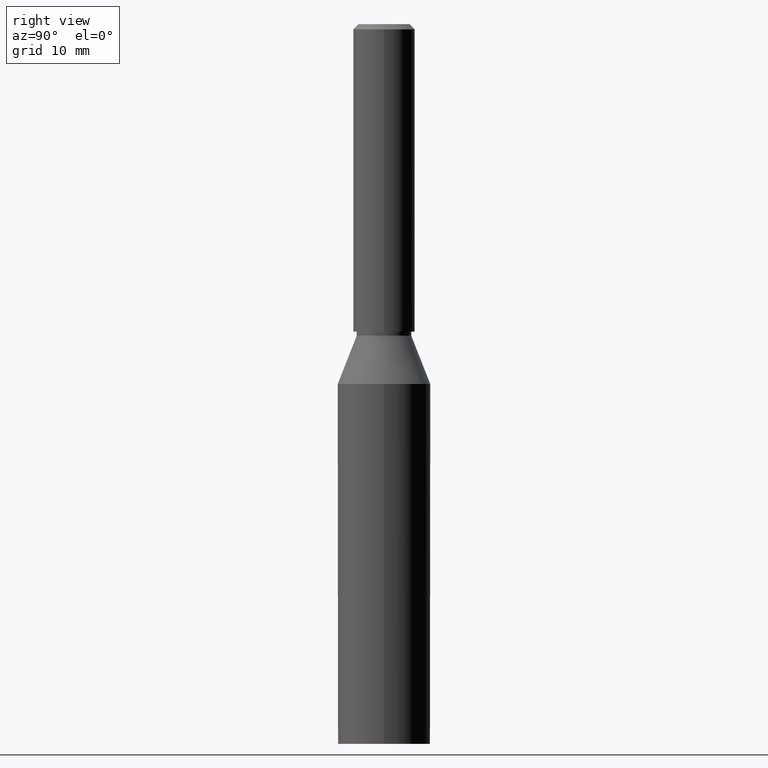
[diagram: clean part render]
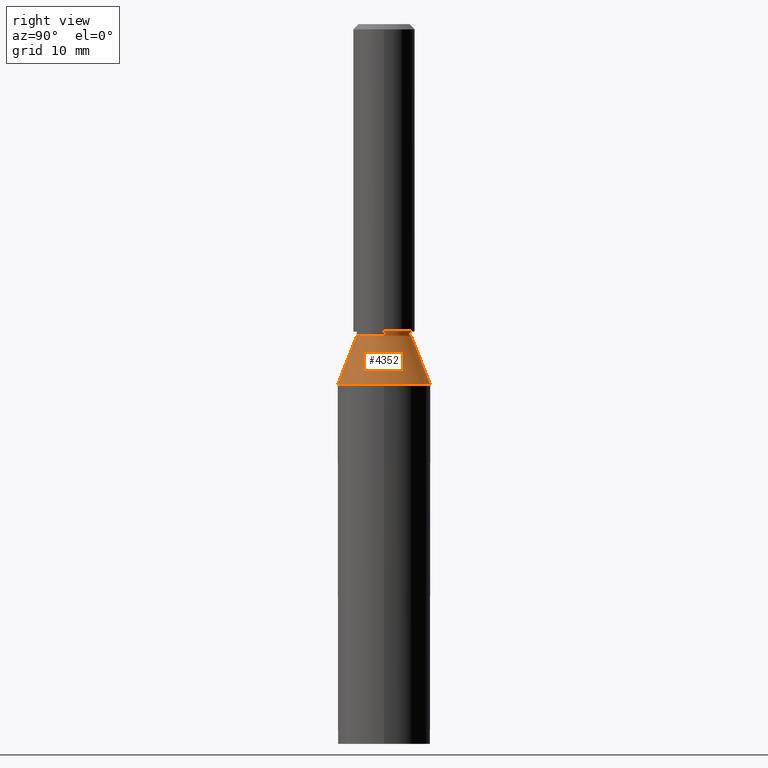
[diagram: same view with one face highlighted and labeled with its STEP entity id]
A machine part, right view. The second image highlights one B-rep face of the part: STEP entity #4352.
In plain terms, the highlighted conical surface has half-angle 21.485 deg.
Its self-contained STEP definition (entity closure, byte-faithful):
#610 = AXIS2_PLACEMENT_3D ( 'NONE', #1900, #8264, #3013 ) ;
#624 = DIRECTION ( 'NONE',  ( -0.0000000000000000000, 1.967742040464242900E-018, -1.000000000000000000 ) ) ;
#1022 = CARTESIAN_POINT ( 'NONE',  ( 0.0000000000000000000, 2.650000000000007500, 39.70000000000001000 ) ) ;
#1470 = CARTESIAN_POINT ( 'NONE',  ( 0.0000000000000000000, 4.500000000000004400, 35.00000000000000000 ) ) ;
#1840 = DIRECTION ( 'NONE',  ( 0.0000000000000000000, 1.000000000000000000, 0.0000000000000000000 ) ) ;
#1900 = CARTESIAN_POINT ( 'NONE',  ( 0.0000000000000000000, -7.811935900643047100E-017, 39.70000000000001000 ) ) ;
#1916 = CIRCLE ( 'NONE', #5065, 4.500000000000004400 ) ;
#1979 = VERTEX_POINT ( 'NONE', #3412 ) ;
#2082 = EDGE_CURVE ( 'NONE', #8967, #5743, #2268, .T. ) ;
#2161 = FACE_OUTER_BOUND ( 'NONE', #4301, .T. ) ;
#2268 = LINE ( 'NONE', #13228, #3595 ) ;
#2541 = CARTESIAN_POINT ( 'NONE',  ( 0.0000000000000000000, -6.887097141624851200E-017, 35.00000000000000000 ) ) ;
#2597 = ORIENTED_EDGE ( 'NONE', *, *, #5511, .T. ) ;
#3013 = DIRECTION ( 'NONE',  ( 0.0000000000000000000, 1.000000000000000000, 0.0000000000000000000 ) ) ;
#3412 = CARTESIAN_POINT ( 'NONE',  ( 0.0000000000000000000, 4.500000000000004400, 35.00000000000000000 ) ) ;
#3505 = DIRECTION ( 'NONE',  ( 0.0000000000000000000, 0.3662648311080571900, -0.9305106520042564200 ) ) ;
#3595 = VECTOR ( 'NONE', #11008, 999.9999999999998900 ) ;
#3615 = CARTESIAN_POINT ( 'NONE',  ( 0.0000000000000000000, -6.887097141624851200E-017, 35.00000000000000000 ) ) ;
#3926 = CARTESIAN_POINT ( 'NONE',  ( 0.0000000000000000000, -6.887097141624851200E-017, 35.00000000000000000 ) ) ;
#4301 = EDGE_LOOP ( 'NONE', ( #2597, #8651, #10626, #8315, #13688 ) ) ;
#4352 = ADVANCED_FACE ( 'NONE', ( #2161 ), #6953, .T. ) ;
#5065 = AXIS2_PLACEMENT_3D ( 'NONE', #3615, #624, #8000 ) ;
#5511 = EDGE_CURVE ( 'NONE', #11586, #8967, #11222, .T. ) ;
#5743 = VERTEX_POINT ( 'NONE', #9718 ) ;
#5992 = AXIS2_PLACEMENT_3D ( 'NONE', #3926, #9118, #1840 ) ;
#6522 = VECTOR ( 'NONE', #3505, 999.9999999999998900 ) ;
#6953 = CONICAL_SURFACE ( 'NONE', #5992, 4.500000000000004400, 0.3749917271333674800 ) ;
#7370 = CIRCLE ( 'NONE', #8835, 4.500000000000004400 ) ;
#7662 = DIRECTION ( 'NONE',  ( -0.0000000000000000000, 1.967742040464242900E-018, -1.000000000000000000 ) ) ;
#8000 = DIRECTION ( 'NONE',  ( 0.0000000000000000000, 1.000000000000000000, 0.0000000000000000000 ) ) ;
#8264 = DIRECTION ( 'NONE',  ( -0.0000000000000000000, 1.967742040464242900E-018, -1.000000000000000000 ) ) ;
#8315 = ORIENTED_EDGE ( 'NONE', *, *, #13122, .F. ) ;
#8651 = ORIENTED_EDGE ( 'NONE', *, *, #2082, .T. ) ;
#8835 = AXIS2_PLACEMENT_3D ( 'NONE', #2541, #7662, #10832 ) ;
#8967 = VERTEX_POINT ( 'NONE', #10060 ) ;
#9118 = DIRECTION ( 'NONE',  ( -0.0000000000000000000, 1.967742040464242900E-018, -1.000000000000000000 ) ) ;
#9392 = EDGE_CURVE ( 'NONE', #11483, #5743, #1916, .T. ) ;
#9718 = CARTESIAN_POINT ( 'NONE',  ( 5.510910596163095500E-016, -4.500000000000004400, 35.00000000000000000 ) ) ;
#10060 = CARTESIAN_POINT ( 'NONE',  ( 3.245314017740495300E-016, -2.650000000000007500, 39.70000000000001000 ) ) ;
#10626 = ORIENTED_EDGE ( 'NONE', *, *, #9392, .F. ) ;
#10832 = DIRECTION ( 'NONE',  ( 0.0000000000000000000, 1.000000000000000000, 0.0000000000000000000 ) ) ;
#10908 = CARTESIAN_POINT ( 'NONE',  ( 4.500000000000004400, 5.510910596163095500E-016, 35.00000000000000000 ) ) ;
#11008 = DIRECTION ( 'NONE',  ( 4.485450530567281600E-017, -0.3662648311080571900, -0.9305106520042564200 ) ) ;
#11222 = CIRCLE ( 'NONE', #610, 2.650000000000007500 ) ;
#11483 = VERTEX_POINT ( 'NONE', #10908 ) ;
#11586 = VERTEX_POINT ( 'NONE', #1022 ) ;
#11782 = EDGE_CURVE ( 'NONE', #11586, #1979, #12119, .T. ) ;
#12119 = LINE ( 'NONE', #1470, #6522 ) ;
#13122 = EDGE_CURVE ( 'NONE', #1979, #11483, #7370, .T. ) ;
#13228 = CARTESIAN_POINT ( 'NONE',  ( 5.510910596163095500E-016, -4.500000000000004400, 35.00000000000000000 ) ) ;
#13688 = ORIENTED_EDGE ( 'NONE', *, *, #11782, .F. ) ;